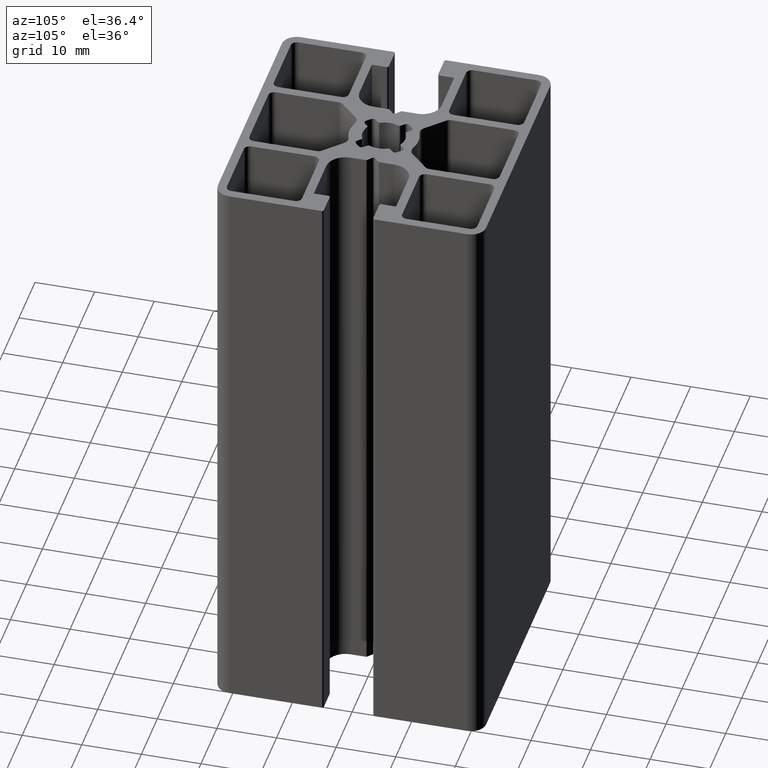
[diagram: clean part render]
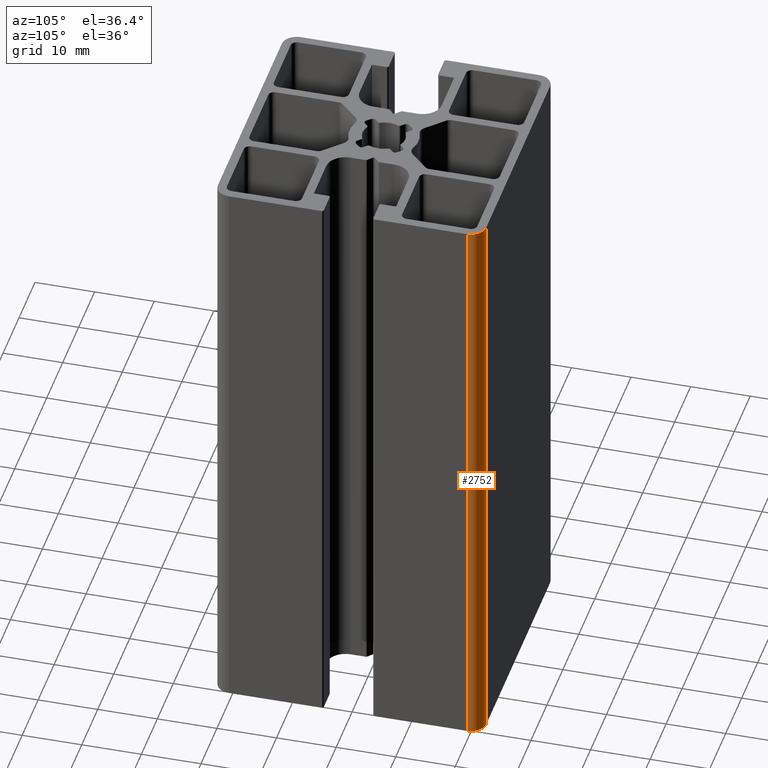
[diagram: same view with one face highlighted and labeled with its STEP entity id]
A machine part, auxiliary view. The second image highlights one B-rep face of the part: STEP entity #2752.
In plain terms, the highlighted cylindrical surface (edge-blend (fillet) strip) has radius 2.5 mm, axis along (0, 0, 1).
Its self-contained STEP definition (entity closure, byte-faithful):
#226=FACE_OUTER_BOUND('',#371,.T.);
#371=EDGE_LOOP('',(#2397,#2398,#2399,#2400));
#633=LINE('',#4695,#889);
#635=LINE('',#4699,#891);
#889=VECTOR('',#3873,100.);
#891=VECTOR('',#3877,100.);
#1039=CIRCLE('',#3032,2.5);
#1044=CIRCLE('',#3044,2.5);
#1307=VERTEX_POINT('',#4666);
#1308=VERTEX_POINT('',#4668);
#1315=VERTEX_POINT('',#4694);
#1316=VERTEX_POINT('',#4698);
#1707=EDGE_CURVE('',#1308,#1307,#1039,.T.);
#1720=EDGE_CURVE('',#1315,#1308,#633,.T.);
#1722=EDGE_CURVE('',#1316,#1307,#635,.T.);
#1723=EDGE_CURVE('',#1315,#1316,#1044,.T.);
#2397=ORIENTED_EDGE('',*,*,#1707,.T.);
#2398=ORIENTED_EDGE('',*,*,#1722,.F.);
#2399=ORIENTED_EDGE('',*,*,#1723,.F.);
#2400=ORIENTED_EDGE('',*,*,#1720,.T.);
#2616=CYLINDRICAL_SURFACE('',#3043,2.5);
#2752=ADVANCED_FACE('',(#226),#2616,.T.);
#3032=AXIS2_PLACEMENT_3D('',#4669,#3843,#3844);
#3043=AXIS2_PLACEMENT_3D('',#4697,#3875,#3876);
#3044=AXIS2_PLACEMENT_3D('',#4700,#3878,#3879);
#3843=DIRECTION('center_axis',(0.,0.,-1.));
#3844=DIRECTION('ref_axis',(1.,-3.55271367880051E-15,0.));
#3873=DIRECTION('',(0.,0.,1.));
#3875=DIRECTION('center_axis',(0.,0.,1.));
#3876=DIRECTION('ref_axis',(1.,-3.55271367880051E-15,0.));
#3877=DIRECTION('',(0.,0.,1.));
#3878=DIRECTION('center_axis',(0.,0.,-1.));
#3879=DIRECTION('ref_axis',(1.,-3.55271367880051E-15,0.));
#4666=CARTESIAN_POINT('',(22.5,20.,100.));
#4668=CARTESIAN_POINT('',(20.,22.5,100.));
#4669=CARTESIAN_POINT('Origin',(20.,20.,100.));
#4694=CARTESIAN_POINT('',(20.,22.5,0.));
#4695=CARTESIAN_POINT('',(20.,22.5,0.));
#4697=CARTESIAN_POINT('Origin',(20.,20.,0.));
#4698=CARTESIAN_POINT('',(22.5,20.,0.));
#4699=CARTESIAN_POINT('',(22.5,20.,0.));
#4700=CARTESIAN_POINT('Origin',(20.,20.,0.));